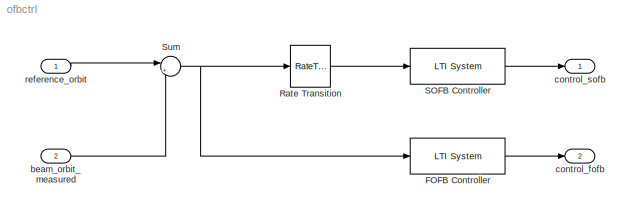
MODEL ofbctrl
KIND model
BLOCK [Reference] FOFB Controller  REF=cstblocks/LTI System
  IC = []
  Ports = [1, 1]
  SID = 226
  SourceBlock = cstblocks/LTI System
  SourceType = LTI Block
  sys = fofbctrl
BLOCK [RateTransition] Rate Transition
  OutPortSampleTimeMultiple = ceil(fofbctrl.Ts/sofbctrl.Ts)
  SID = 222
BLOCK [Reference] SOFB Controller  REF=cstblocks/LTI System
  IC = []
  Ports = [1, 1]
  SID = 225
  SourceBlock = cstblocks/LTI System
  SourceType = LTI Block
  sys = sofbctrl
BLOCK [Sum] Sum
  IconShape = round
  InputSameDT = off
  Inputs = |+-
  OutDataTypeStr = Inherit: Inherit via internal rule
  Ports = [2, 1]
  SID = 186
  SaturateOnIntegerOverflow = off
BLOCK [Inport] beam_orbit_measured
  IconDisplay = Port number
  Port = 2
  PortDimensions = norbit
  SID = 183
BLOCK [Outport] control_fofb
  IconDisplay = Port number
  Port = 2
  SID = 182
BLOCK [Outport] control_sofb
  IconDisplay = Port number
  SID = 181
BLOCK [Inport] reference_orbit
  IconDisplay = Port number
  PortDimensions = norbit
  SID = 185
LINE FOFB Controller:1 -> control_fofb:1
LINE Rate Transition:1 -> SOFB Controller:1
LINE SOFB Controller:1 -> control_sofb:1
NET Sum:1 -> FOFB Controller:1, Rate Transition:1
LINE beam_orbit_measured:1 -> Sum:2
LINE reference_orbit:1 -> Sum:1
note: NET lines group one-source signal fan-out (src -> all destinations, sorted); 1:1 wires keep LINE
